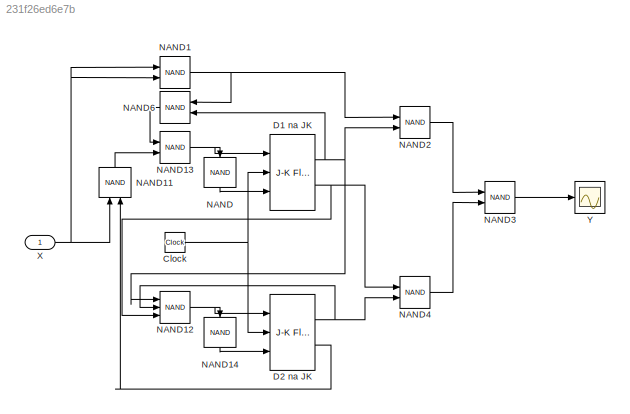
MODEL slx_231f26ed6e7b
KIND model
CONFIG AbsTol = auto
CONFIG FixedStep = auto
CONFIG MaxStep = auto
CONFIG MinStep = auto
CONFIG RelTol = 1e-3
CONFIG SampleTimeConstraint = Unconstrained
CONFIG Solver = ode45
CONFIG SolverMode = SingleTasking
CONFIG SolverName = ode45
CONFIG StartTime = 0.0
CONFIG StopTime = 10.0
BLOCK [Clock] Clock
BLOCK [Reference] D1 na JK  REF=simulink_extras/Flip Flops/J-K
Flip-Flop
  Ports = [3, 2]
  SourceBlock = simulink_extras/Flip Flops/J-K\nFlip-Flop
  SourceType = JKFlipFlop
  initial_condition = 0
BLOCK [Reference] D2 na JK  REF=simulink_extras/Flip Flops/J-K
Flip-Flop
  Ports = [3, 2]
  SourceBlock = simulink_extras/Flip Flops/J-K\nFlip-Flop
  SourceType = JKFlipFlop
  initial_condition = 0
BLOCK [Logic] NAND
  AllPortsSameDT = off
  IconShape = distinctive
  Inputs = 1
  Operator = NAND
  OutDataTypeStr = boolean
  Ports = [1, 1]
BLOCK [Logic] NAND1
  AllPortsSameDT = off
  IconShape = distinctive
  Operator = NAND
  OutDataTypeStr = boolean
  Ports = [2, 1]
BLOCK [Logic] NAND11
  AllPortsSameDT = off
  IconShape = distinctive
  Operator = NAND
  OutDataTypeStr = boolean
  Ports = [2, 1]
BLOCK [Logic] NAND12
  AllPortsSameDT = off
  IconShape = distinctive
  Inputs = 3
  Operator = NAND
  OutDataTypeStr = boolean
  Ports = [3, 1]
BLOCK [Logic] NAND13
  AllPortsSameDT = off
  IconShape = distinctive
  Operator = NAND
  OutDataTypeStr = boolean
  Ports = [2, 1]
BLOCK [Logic] NAND14
  AllPortsSameDT = off
  IconShape = distinctive
  Inputs = 1
  Operator = NAND
  OutDataTypeStr = boolean
  Ports = [1, 1]
BLOCK [Logic] NAND2
  AllPortsSameDT = off
  IconShape = distinctive
  Operator = NAND
  OutDataTypeStr = boolean
  Ports = [2, 1]
BLOCK [Logic] NAND3
  AllPortsSameDT = off
  IconShape = distinctive
  Operator = NAND
  OutDataTypeStr = boolean
  Ports = [2, 1]
BLOCK [Logic] NAND4
  AllPortsSameDT = off
  IconShape = distinctive
  Operator = NAND
  OutDataTypeStr = boolean
  Ports = [2, 1]
BLOCK [Logic] NAND6
  AllPortsSameDT = off
  IconShape = distinctive
  Operator = NAND
  OutDataTypeStr = boolean
  Ports = [2, 1]
BLOCK [Inport] X
  IconDisplay = Port number
BLOCK [Scope] Y
  DataFormat = StructureWithTime
  Decimation = 1
  Floating = off
  Grid = on
  LimitDataPoints = off
  MaxDataPoints = 5000
  NumInputPorts = 1
  Ports = [1]
  SampleInput = off
  SampleTime = -1
  SaveName = ScopeData
  SaveToWorkspace = off
  ShowLegends = off
  TickLabels = OneTimeTick
  TimeRange = auto
  YMax = 10
  YMin = -10
  ZoomMode = on
NET Clock:1 -> D1 na JK:2, D2 na JK:2
NET D1 na JK:1 -> NAND12:1, NAND2:2, NAND6:2
NET D1 na JK:2 -> NAND12:3, NAND4:1
NET D2 na JK:1 -> NAND12:2, NAND4:2
LINE D2 na JK:2 -> NAND11:2
LINE NAND11:1 -> NAND13:2
NET NAND12:1 -> D2 na JK:1, NAND14:1
NET NAND13:1 -> D1 na JK:1, NAND:1
LINE NAND14:1 -> D2 na JK:3
NET NAND1:1 -> NAND2:1, NAND6:1
LINE NAND2:1 -> NAND3:1
LINE NAND3:1 -> Y:1
LINE NAND4:1 -> NAND3:2
LINE NAND6:1 -> NAND13:1
LINE NAND:1 -> D1 na JK:3
NET X:1 -> NAND11:1, NAND1:1, NAND1:2
note: NET lines group one-source signal fan-out (src -> all destinations, sorted); 1:1 wires keep LINE
